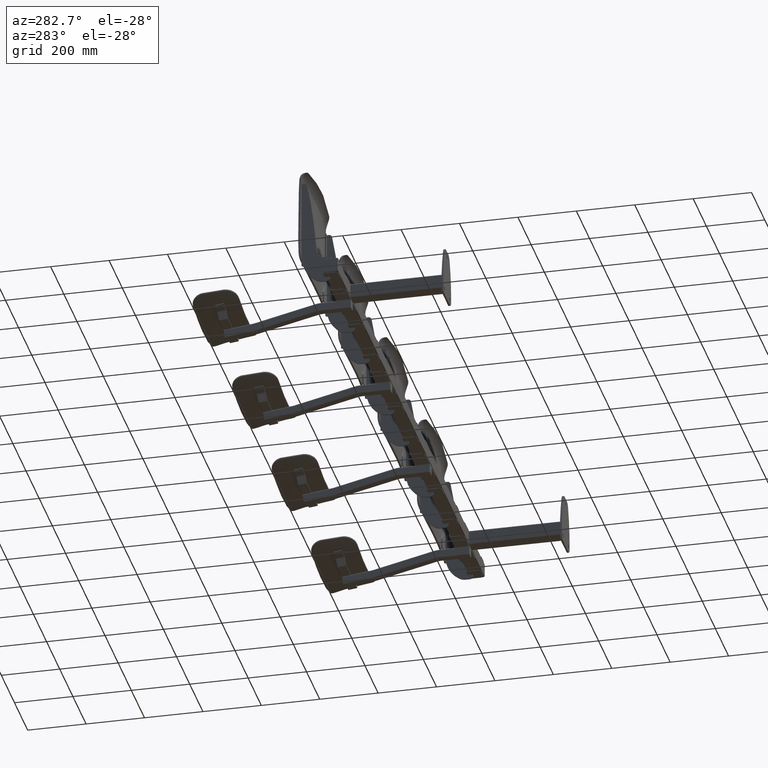
[diagram: clean part render]
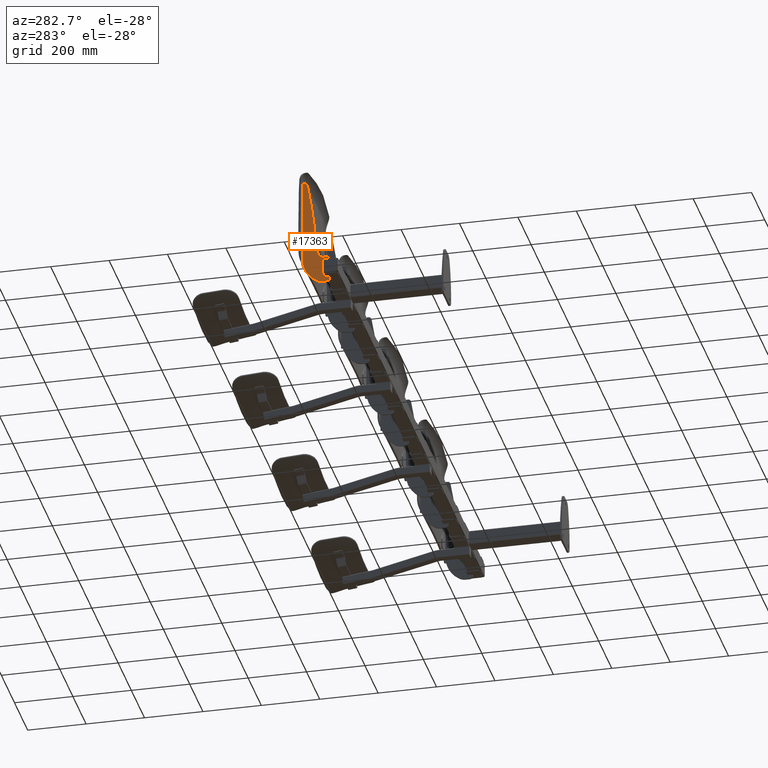
[diagram: same view with one face highlighted and labeled with its STEP entity id]
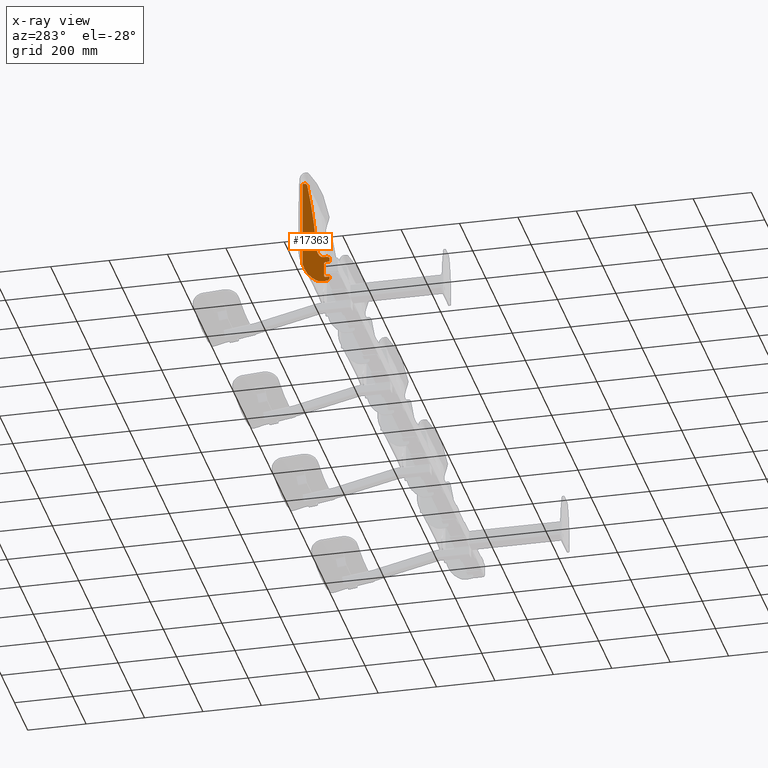
[diagram: x-ray of the same camera — body ghosted, the highlighted face saturated]
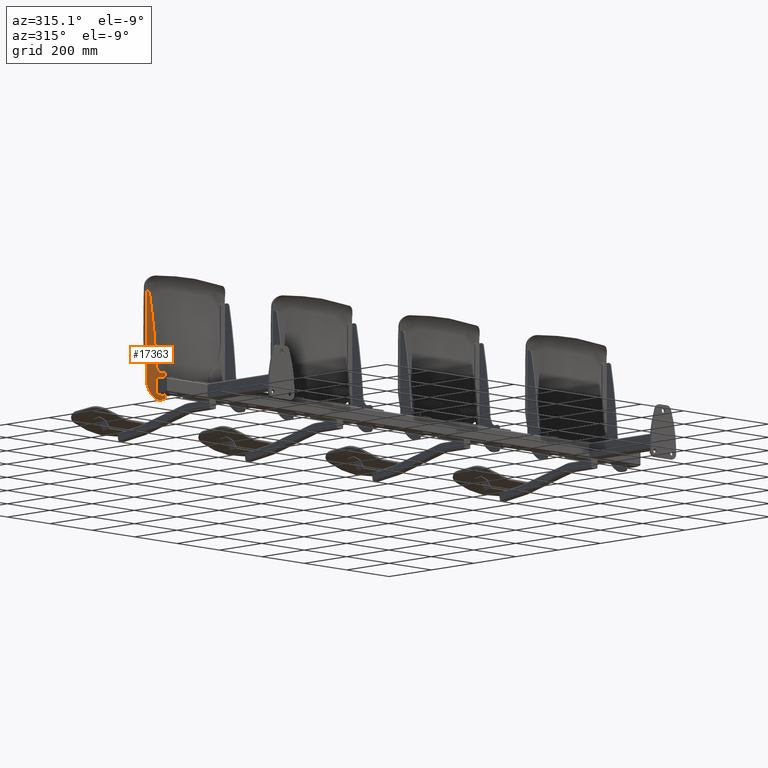
[diagram: same view with one face highlighted and labeled with its STEP entity id]
A machine part, auxiliary view. The second image highlights one B-rep face of the part: STEP entity #17363.
The next image is the same camera in x-ray: the body ghosted, the highlighted face saturated — about 0% of this face is hidden behind the body in this view.
A second angle (auxiliary view) of the same face is appended — the face is thin or edge-on in the first view.
In plain terms, the highlighted planar face has unit normal (-1, 0, 0).
Its self-contained STEP definition (entity closure, byte-faithful):
#1 = CARTESIAN_POINT ( 'NONE',  ( -188.5000000000000000, -28.67664571090134000, 104.9645770423939800 ) ) ;
#2 = CARTESIAN_POINT ( 'NONE',  ( -188.5000000000000000, -29.99960903027743000, 85.00000000000001400 ) ) ;
#8 = CARTESIAN_POINT ( 'NONE',  ( -188.5000000000000000, 0.4346393196845710300, 321.8704615215368700 ) ) ;
#12 = CARTESIAN_POINT ( 'NONE',  ( -188.5000000000000000, -29.85772430000088900, -39.60058345625546400 ) ) ;
#14 = CARTESIAN_POINT ( 'NONE',  ( -188.5000000000000000, 16.51392966436116100, 24.00000000000002100 ) ) ;
#17 = CARTESIAN_POINT ( 'NONE',  ( -188.5000000000000000, 10.25815059093826400, 330.0000000000000000 ) ) ;
#19 = CARTESIAN_POINT ( 'NONE',  ( -188.5000000000000000, 15.49999999999940300, 24.00000000000002100 ) ) ;
#20 = CARTESIAN_POINT ( 'NONE',  ( -188.5000000000000000, 16.51392966436116100, 330.0000000000000000 ) ) ;
#53 = CARTESIAN_POINT ( 'NONE',  ( -188.5000000000000000, 768.8487700016353300, 42.09000911109884400 ) ) ;
#55 = PLANE ( 'NONE',  #248 ) ;
#57 = DIRECTION ( 'NONE',  ( -1.000000000000000000, 0.0000000000000000000, 0.0000000000000000000 ) ) ;
#58 = DIRECTION ( 'NONE',  ( 0.0000000000000000000, 0.0000000000000000000, 1.000000000000000000 ) ) ;
#248 = AXIS2_PLACEMENT_3D ( 'NONE', #53, #57, #58 ) ;
#1645 = CARTESIAN_POINT ( 'NONE',  ( -188.5000000000000000, -66.00000000000000000, -45.49999999999999300 ) ) ;
#1681 = CARTESIAN_POINT ( 'NONE',  ( -188.5000000000000000, -39.46143375604454900, 54.56158366234524200 ) ) ;
#1683 = CARTESIAN_POINT ( 'NONE',  ( -188.5000000000000000, -76.00000000000001400, 35.00000000000000700 ) ) ;
#1684 = CARTESIAN_POINT ( 'NONE',  ( -188.5000000000000000, -66.00000000000000000, 45.00000000000001400 ) ) ;
#1685 = CARTESIAN_POINT ( 'NONE',  ( -188.5000000000000000, -56.52131254699094100, 45.00000000000002100 ) ) ;
#1686 = CARTESIAN_POINT ( 'NONE',  ( -188.5000000000000000, -62.00000000000000000, 25.50000000000000400 ) ) ;
#1687 = CARTESIAN_POINT ( 'NONE',  ( -188.5000000000000000, -76.00000000000001400, 25.50000000000000700 ) ) ;
#1688 = CARTESIAN_POINT ( 'NONE',  ( -188.5000000000000000, -62.00000000000000000, -30.49999999999999300 ) ) ;
#1689 = CARTESIAN_POINT ( 'NONE',  ( -188.5000000000000000, -56.99999999999999300, -25.49999999999999300 ) ) ;
#1690 = CARTESIAN_POINT ( 'NONE',  ( -188.5000000000000000, -56.99999999999999300, 20.50000000000000400 ) ) ;
#1691 = CARTESIAN_POINT ( 'NONE',  ( -188.5000000000000000, -76.00000000000001400, -35.49999999999999300 ) ) ;
#1692 = CARTESIAN_POINT ( 'NONE',  ( -188.5000000000000000, -76.00000000000001400, -30.49999999999998900 ) ) ;
#2615 = CARTESIAN_POINT ( 'NONE',  ( -188.5000000000000000, -50.76586166187402700, -45.49999999999999300 ) ) ;
#4517 = ORIENTED_EDGE ( 'NONE', *, *, #22017, .F. ) ;
#4535 = ORIENTED_EDGE ( 'NONE', *, *, #22019, .F. ) ;
#4537 = ORIENTED_EDGE ( 'NONE', *, *, #22018, .T. ) ;
#4538 = ORIENTED_EDGE ( 'NONE', *, *, #22033, .T. ) ;
#6748 = ORIENTED_EDGE ( 'NONE', *, *, #22035, .T. ) ;
#6876 = CIRCLE ( 'NONE', #7847, 800.0000000000000000 ) ;
#6880 = LINE ( 'NONE', #18654, #6892 ) ;
#6885 = LINE ( 'NONE', #18658, #6888 ) ;
#6887 = LINE ( 'NONE', #18660, #6890 ) ;
#6888 = VECTOR ( 'NONE', #18659, 1000.000000000000000 ) ;
#6889 = CIRCLE ( 'NONE', #7850, 99.99999999999973000 ) ;
#6890 = VECTOR ( 'NONE', #18661, 1000.000000000000000 ) ;
#6892 = VECTOR ( 'NONE', #18662, 1000.000000000000000 ) ;
#6893 = CIRCLE ( 'NONE', #7851, 40.00000000000000000 ) ;
#6894 = LINE ( 'NONE', #18663, #6896 ) ;
#6895 = CIRCLE ( 'NONE', #7852, 10.00000000000000200 ) ;
#6896 = VECTOR ( 'NONE', #18664, 1000.000000000000000 ) ;
#6897 = LINE ( 'NONE', #18668, #6899 ) ;
#6898 = LINE ( 'NONE', #18678, #6901 ) ;
#6899 = VECTOR ( 'NONE', #18669, 1000.000000000000000 ) ;
#6900 = CIRCLE ( 'NONE', #7853, 5.000000000000000900 ) ;
#6901 = VECTOR ( 'NONE', #18679, 1000.000000000000000 ) ;
#6902 = LINE ( 'NONE', #18673, #6904 ) ;
#6903 = CIRCLE ( 'NONE', #7854, 5.000000000000000900 ) ;
#6904 = VECTOR ( 'NONE', #18674, 1000.000000000000000 ) ;
#6905 = LINE ( 'NONE', #18680, #6907 ) ;
#6906 = LINE ( 'NONE', #18690, #6909 ) ;
#6907 = VECTOR ( 'NONE', #18681, 1000.000000000000000 ) ;
#6908 = CIRCLE ( 'NONE', #7855, 10.00000000000000200 ) ;
#6909 = VECTOR ( 'NONE', #18691, 1000.000000000000000 ) ;
#6910 = LINE ( 'NONE', #18685, #6912 ) ;
#6911 = CIRCLE ( 'NONE', #7856, 20.00000000000000400 ) ;
#6912 = VECTOR ( 'NONE', #18686, 1000.000000000000000 ) ;
#6913 = CIRCLE ( 'NONE', #7857, 64.99999999999991500 ) ;
#6914 = CIRCLE ( 'NONE', #7858, 2000.000000000000000 ) ;
#6915 = CIRCLE ( 'NONE', #7859, 10.00000000000000900 ) ;
#7847 = AXIS2_PLACEMENT_3D ( 'NONE', #18645, #18646, #18647 ) ;
#7850 = AXIS2_PLACEMENT_3D ( 'NONE', #18665, #18666, #18667 ) ;
#7851 = AXIS2_PLACEMENT_3D ( 'NONE', #18670, #18671, #18672 ) ;
#7852 = AXIS2_PLACEMENT_3D ( 'NONE', #18675, #18676, #18677 ) ;
#7853 = AXIS2_PLACEMENT_3D ( 'NONE', #18682, #18683, #18684 ) ;
#7854 = AXIS2_PLACEMENT_3D ( 'NONE', #18687, #18688, #18689 ) ;
#7855 = AXIS2_PLACEMENT_3D ( 'NONE', #18692, #18693, #18694 ) ;
#7856 = AXIS2_PLACEMENT_3D ( 'NONE', #18695, #18696, #18697 ) ;
#7857 = AXIS2_PLACEMENT_3D ( 'NONE', #18698, #18699, #18700 ) ;
#7858 = AXIS2_PLACEMENT_3D ( 'NONE', #18703, #18704, #18705 ) ;
#7859 = AXIS2_PLACEMENT_3D ( 'NONE', #18706, #18707, #18708 ) ;
#10712 = ORIENTED_EDGE ( 'NONE', *, *, #22011, .F. ) ;
#10801 = ORIENTED_EDGE ( 'NONE', *, *, #22030, .T. ) ;
#10814 = ORIENTED_EDGE ( 'NONE', *, *, #22027, .T. ) ;
#10822 = ORIENTED_EDGE ( 'NONE', *, *, #22034, .T. ) ;
#11226 = ORIENTED_EDGE ( 'NONE', *, *, #22036, .T. ) ;
#12247 = ORIENTED_EDGE ( 'NONE', *, *, #22024, .T. ) ;
#13605 = ORIENTED_EDGE ( 'NONE', *, *, #22023, .T. ) ;
#13627 = ORIENTED_EDGE ( 'NONE', *, *, #22029, .T. ) ;
#13628 = ORIENTED_EDGE ( 'NONE', *, *, #22028, .T. ) ;
#14325 = ORIENTED_EDGE ( 'NONE', *, *, #22026, .T. ) ;
#15235 = VERTEX_POINT ( 'NONE', #1645 ) ;
#15271 = VERTEX_POINT ( 'NONE', #1681 ) ;
#15273 = VERTEX_POINT ( 'NONE', #1683 ) ;
#15274 = VERTEX_POINT ( 'NONE', #1684 ) ;
#15275 = VERTEX_POINT ( 'NONE', #1685 ) ;
#15276 = VERTEX_POINT ( 'NONE', #1686 ) ;
#15277 = VERTEX_POINT ( 'NONE', #1687 ) ;
#15278 = VERTEX_POINT ( 'NONE', #1688 ) ;
#15279 = VERTEX_POINT ( 'NONE', #1689 ) ;
#15280 = VERTEX_POINT ( 'NONE', #1690 ) ;
#15281 = VERTEX_POINT ( 'NONE', #1691 ) ;
#15282 = VERTEX_POINT ( 'NONE', #1692 ) ;
#15725 = EDGE_LOOP ( 'NONE', ( #4517, #4537, #4535, #16991, #22325, #16989, #13605, #12247, #16992, #14325, #10814, #13628, #13627, #10801, #17013, #17010, #4538, #10822, #10712, #6748, #11226 ) ) ;
#16659 = VERTEX_POINT ( 'NONE', #2615 ) ;
#16758 = VERTEX_POINT ( 'NONE', #1 ) ;
#16759 = VERTEX_POINT ( 'NONE', #2 ) ;
#16765 = VERTEX_POINT ( 'NONE', #8 ) ;
#16769 = VERTEX_POINT ( 'NONE', #12 ) ;
#16771 = VERTEX_POINT ( 'NONE', #14 ) ;
#16774 = VERTEX_POINT ( 'NONE', #17 ) ;
#16776 = VERTEX_POINT ( 'NONE', #19 ) ;
#16777 = VERTEX_POINT ( 'NONE', #20 ) ;
#16989 = ORIENTED_EDGE ( 'NONE', *, *, #22022, .T. ) ;
#16991 = ORIENTED_EDGE ( 'NONE', *, *, #22020, .T. ) ;
#16992 = ORIENTED_EDGE ( 'NONE', *, *, #22025, .T. ) ;
#17010 = ORIENTED_EDGE ( 'NONE', *, *, #22032, .T. ) ;
#17013 = ORIENTED_EDGE ( 'NONE', *, *, #22031, .T. ) ;
#17363 = ADVANCED_FACE ( 'NONE', ( #22686 ), #55, .T. ) ;
#18645 = CARTESIAN_POINT ( 'NONE',  ( -188.5000000000000000, 768.8487700016353300, 42.09000911109884400 ) ) ;
#18646 = DIRECTION ( 'NONE',  ( 1.000000000000000000, -0.0000000000000000000, -0.0000000000000000000 ) ) ;
#18647 = DIRECTION ( 'NONE',  ( 0.0000000000000000000, 0.0000000000000000000, 1.000000000000000000 ) ) ;
#18654 = CARTESIAN_POINT ( 'NONE',  ( -188.5000000000000000, -44.99999999999998600, 24.00000000000002100 ) ) ;
#18658 = CARTESIAN_POINT ( 'NONE',  ( -188.5000000000000000, 17.99999999999996100, 330.0000000000000000 ) ) ;
#18659 = DIRECTION ( 'NONE',  ( 0.0000000000000000000, -1.000000000000000000, 0.0000000000000000000 ) ) ;
#18660 = CARTESIAN_POINT ( 'NONE',  ( -188.5000000000000000, 16.51392966436116100, 24.00000000000002100 ) ) ;
#18661 = DIRECTION ( 'NONE',  ( -0.0000000000000000000, -0.0000000000000000000, -1.000000000000000000 ) ) ;
#18662 = DIRECTION ( 'NONE',  ( 0.0000000000000000000, 1.000000000000000000, 0.0000000000000000000 ) ) ;
#18663 = CARTESIAN_POINT ( 'NONE',  ( -188.5000000000000000, -76.00000000000001400, -45.49999999999999300 ) ) ;
#18664 = DIRECTION ( 'NONE',  ( -0.0000000000000000000, -1.000000000000000000, -0.0000000000000000000 ) ) ;
#18665 = CARTESIAN_POINT ( 'NONE',  ( -188.5000000000000000, -82.12806770468355900, 45.65087518438299700 ) ) ;
#18666 = DIRECTION ( 'NONE',  ( -1.000000000000000000, 0.0000000000000000000, 0.0000000000000000000 ) ) ;
#18667 = DIRECTION ( 'NONE',  ( 0.0000000000000000000, 0.0000000000000000000, 1.000000000000000000 ) ) ;
#18668 = CARTESIAN_POINT ( 'NONE',  ( -188.5000000000000000, -76.00000000000001400, -30.49999999999998900 ) ) ;
#18669 = DIRECTION ( 'NONE',  ( -0.0000000000000000000, -0.0000000000000000000, 1.000000000000000000 ) ) ;
#18670 = CARTESIAN_POINT ( 'NONE',  ( -188.5000000000000000, -50.76586166187402700, -5.499999999999991100 ) ) ;
#18671 = DIRECTION ( 'NONE',  ( -1.000000000000000000, 0.0000000000000000000, 0.0000000000000000000 ) ) ;
#18672 = DIRECTION ( 'NONE',  ( 0.0000000000000000000, 0.0000000000000000000, 1.000000000000000000 ) ) ;
#18673 = CARTESIAN_POINT ( 'NONE',  ( -188.5000000000000000, -56.99999999999999300, 25.50000000000000400 ) ) ;
#18674 = DIRECTION ( 'NONE',  ( -0.0000000000000000000, -0.0000000000000000000, 1.000000000000000000 ) ) ;
#18675 = CARTESIAN_POINT ( 'NONE',  ( -188.5000000000000000, -66.00000000000000000, -35.49999999999999300 ) ) ;
#18676 = DIRECTION ( 'NONE',  ( -1.000000000000000000, 0.0000000000000000000, 0.0000000000000000000 ) ) ;
#18677 = DIRECTION ( 'NONE',  ( 0.0000000000000000000, 0.0000000000000000000, 1.000000000000000000 ) ) ;
#18678 = CARTESIAN_POINT ( 'NONE',  ( -188.5000000000000000, -56.99999999999999300, -30.49999999999999600 ) ) ;
#18679 = DIRECTION ( 'NONE',  ( -0.0000000000000000000, 1.000000000000000000, -3.652049423109068300E-016 ) ) ;
#18680 = CARTESIAN_POINT ( 'NONE',  ( -188.5000000000000000, -76.00000000000001400, 25.50000000000000700 ) ) ;
#18681 = DIRECTION ( 'NONE',  ( -0.0000000000000000000, -1.000000000000000000, 1.826024711554535900E-016 ) ) ;
#18682 = CARTESIAN_POINT ( 'NONE',  ( -188.5000000000000000, -62.00000000000000000, -25.49999999999999300 ) ) ;
#18683 = DIRECTION ( 'NONE',  ( 1.000000000000000000, -0.0000000000000000000, -0.0000000000000000000 ) ) ;
#18684 = DIRECTION ( 'NONE',  ( 0.0000000000000000000, 0.0000000000000000000, 1.000000000000000000 ) ) ;
#18685 = CARTESIAN_POINT ( 'NONE',  ( -188.5000000000000000, -76.00000000000001400, 45.00000000000001400 ) ) ;
#18686 = DIRECTION ( 'NONE',  ( 0.0000000000000000000, 1.000000000000000000, 2.359788892426816400E-016 ) ) ;
#18687 = CARTESIAN_POINT ( 'NONE',  ( -188.5000000000000000, -62.00000000000000000, 20.50000000000000400 ) ) ;
#18688 = DIRECTION ( 'NONE',  ( 1.000000000000000000, -0.0000000000000000000, -0.0000000000000000000 ) ) ;
#18689 = DIRECTION ( 'NONE',  ( 0.0000000000000000000, 0.0000000000000000000, 1.000000000000000000 ) ) ;
#18690 = CARTESIAN_POINT ( 'NONE',  ( -188.5000000000000000, -76.00000000000001400, 25.50000000000000700 ) ) ;
#18691 = DIRECTION ( 'NONE',  ( 0.0000000000000000000, 0.0000000000000000000, 1.000000000000000000 ) ) ;
#18692 = CARTESIAN_POINT ( 'NONE',  ( -188.5000000000000000, -66.00000000000000000, 35.00000000000000700 ) ) ;
#18693 = DIRECTION ( 'NONE',  ( -1.000000000000000000, 0.0000000000000000000, 0.0000000000000000000 ) ) ;
#18694 = DIRECTION ( 'NONE',  ( 0.0000000000000000000, 0.0000000000000000000, 1.000000000000000000 ) ) ;
#18695 = CARTESIAN_POINT ( 'NONE',  ( -188.5000000000000000, -56.52131254699094100, 65.00000000000002800 ) ) ;
#18696 = DIRECTION ( 'NONE',  ( 1.000000000000000000, -0.0000000000000000000, -0.0000000000000000000 ) ) ;
#18697 = DIRECTION ( 'NONE',  ( 0.0000000000000000000, -1.734723475976806700E-015, 1.000000000000000000 ) ) ;
#18698 = CARTESIAN_POINT ( 'NONE',  ( -188.5000000000000000, -94.90603982662021600, 88.48643675972323300 ) ) ;
#18699 = DIRECTION ( 'NONE',  ( 1.000000000000000000, 0.0000000000000000000, 0.0000000000000000000 ) ) ;
#18700 = DIRECTION ( 'NONE',  ( 0.0000000000000000000, 0.0000000000000000000, -1.000000000000000000 ) ) ;
#18703 = CARTESIAN_POINT ( 'NONE',  ( -188.5000000000000000, 1965.136893570438800, -52.22184278584374100 ) ) ;
#18704 = DIRECTION ( 'NONE',  ( -1.000000000000000000, -0.0000000000000000000, -0.0000000000000000000 ) ) ;
#18705 = DIRECTION ( 'NONE',  ( 0.0000000000000000000, 0.0000000000000000000, -1.000000000000000000 ) ) ;
#18706 = CARTESIAN_POINT ( 'NONE',  ( -188.5000000000000000, 10.25815059093826400, 320.0000000000000000 ) ) ;
#18707 = DIRECTION ( 'NONE',  ( -1.000000000000000000, 0.0000000000000000000, 0.0000000000000000000 ) ) ;
#18708 = DIRECTION ( 'NONE',  ( 0.0000000000000000000, 0.0000000000000000000, 1.000000000000000000 ) ) ;
#22011 = EDGE_CURVE ( 'NONE', #16758, #16759, #6876, .T. ) ;
#22017 = EDGE_CURVE ( 'NONE', #16777, #16774, #6885, .T. ) ;
#22018 = EDGE_CURVE ( 'NONE', #16777, #16771, #6887, .T. ) ;
#22019 = EDGE_CURVE ( 'NONE', #16776, #16771, #6880, .T. ) ;
#22020 = EDGE_CURVE ( 'NONE', #16776, #16769, #6889, .T. ) ;
#22021 = EDGE_CURVE ( 'NONE', #16769, #16659, #6893, .T. ) ;
#22022 = EDGE_CURVE ( 'NONE', #16659, #15235, #6894, .T. ) ;
#22023 = EDGE_CURVE ( 'NONE', #15235, #15281, #6895, .T. ) ;
#22024 = EDGE_CURVE ( 'NONE', #15281, #15282, #6897, .T. ) ;
#22025 = EDGE_CURVE ( 'NONE', #15282, #15278, #6898, .T. ) ;
#22026 = EDGE_CURVE ( 'NONE', #15278, #15279, #6900, .T. ) ;
#22027 = EDGE_CURVE ( 'NONE', #15279, #15280, #6902, .T. ) ;
#22028 = EDGE_CURVE ( 'NONE', #15280, #15276, #6903, .T. ) ;
#22029 = EDGE_CURVE ( 'NONE', #15276, #15277, #6905, .T. ) ;
#22030 = EDGE_CURVE ( 'NONE', #15277, #15273, #6906, .T. ) ;
#22031 = EDGE_CURVE ( 'NONE', #15273, #15274, #6908, .T. ) ;
#22032 = EDGE_CURVE ( 'NONE', #15274, #15275, #6910, .T. ) ;
#22033 = EDGE_CURVE ( 'NONE', #15275, #15271, #6911, .T. ) ;
#22034 = EDGE_CURVE ( 'NONE', #15271, #16759, #6913, .T. ) ;
#22035 = EDGE_CURVE ( 'NONE', #16758, #16765, #6914, .T. ) ;
#22036 = EDGE_CURVE ( 'NONE', #16765, #16774, #6915, .T. ) ;
#22325 = ORIENTED_EDGE ( 'NONE', *, *, #22021, .T. ) ;
#22686 = FACE_OUTER_BOUND ( 'NONE', #15725, .T. ) ;